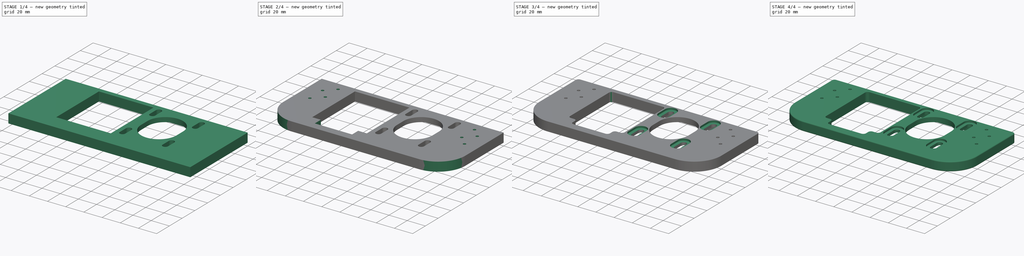
[diagram: build sequence overview — one tinted view per stage of 4, left to right]
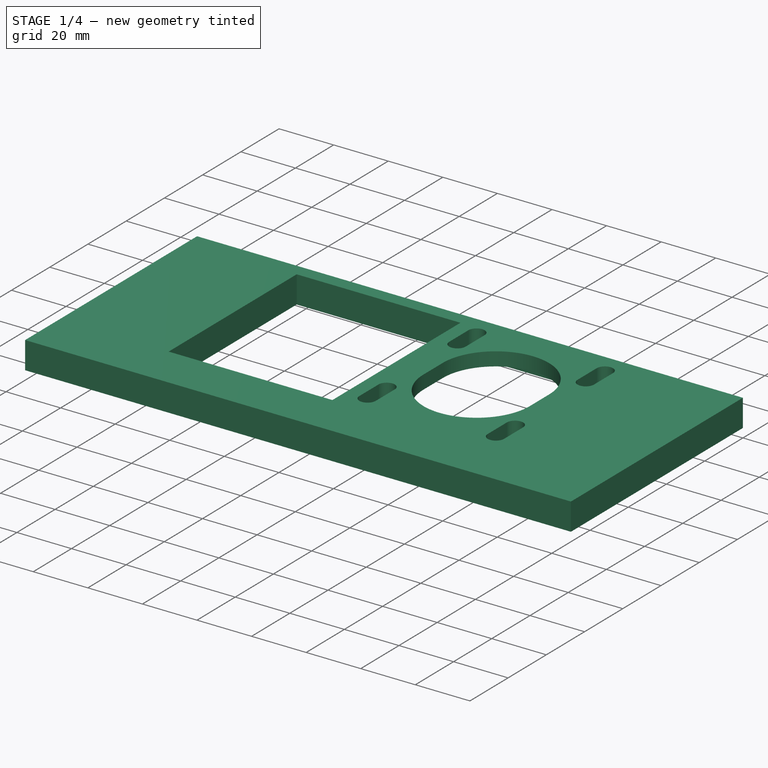
[diagram: stage 1 of 4 — iso view after this stage's code; geometry added in this stage tinted green]
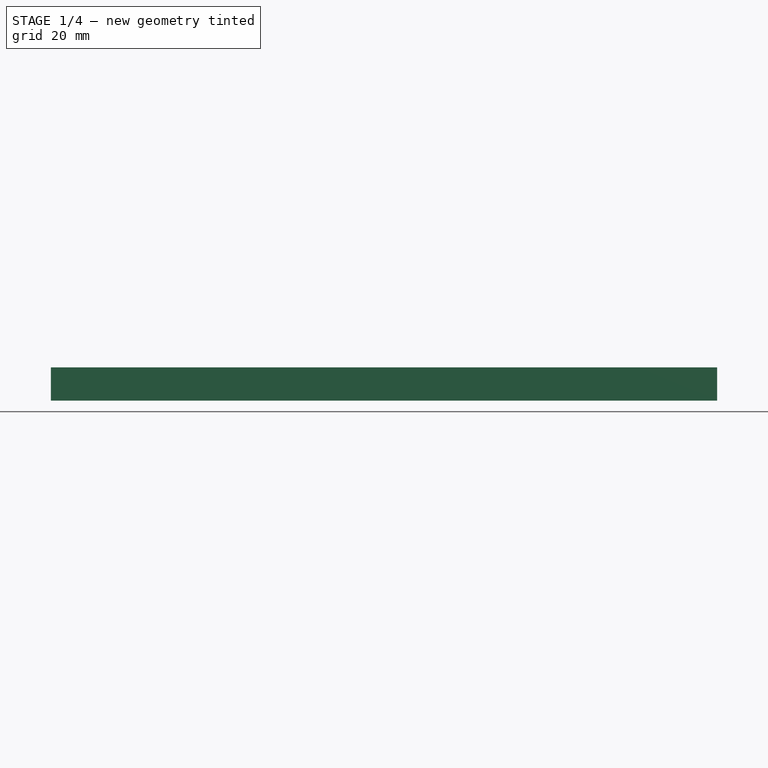
[diagram: stage 1 of 4 — front view after this stage's code; geometry added in this stage tinted green]
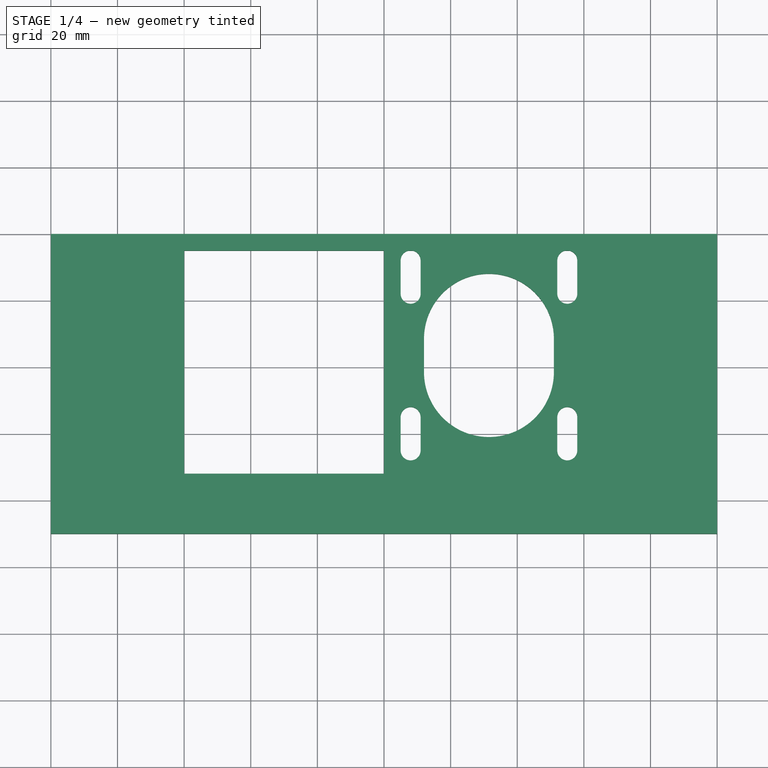
[diagram: stage 1 of 4 — top view after this stage's code; geometry added in this stage tinted green]
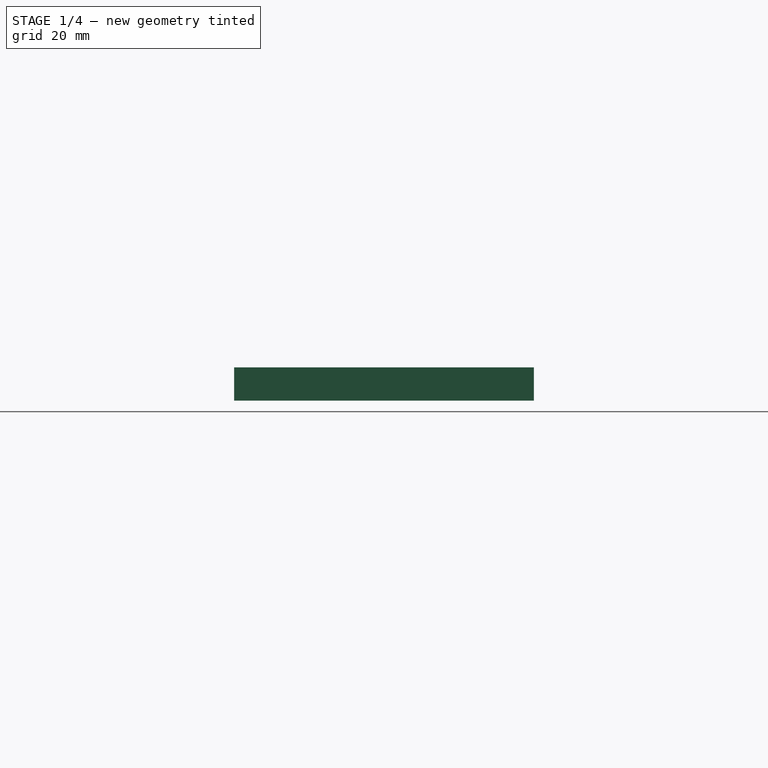
[diagram: stage 1 of 4 — right view after this stage's code; geometry added in this stage tinted green]
FCSTD DOCUMENT  (FreeCAD 0.19R24276 (Git))
Label: Stepper_holder_V2_from_part16_as_4
License: All rights reserved
LicenseURL: http://en.wikipedia.org/wiki/All_rights_reserved
objects: Sketcher::SketchObject×5, PartDesign::Fillet×5, PartDesign::Pocket×3, PartDesign::Pad×2, PartDesign::Body×1
note: 26 computed .brp shape members not serialized (recipe doc carries the construction recipe); baked Part::Feature solids carry a one-line shape summary decoded from their .brp

FEATURE [Sketcher::SketchObject] Sketch  label="Sketch_d39_up_part"
  FullyConstrained = false
  MapMode = 5
  Support = -> [XY_Plane]
  sketch-geometry (104):
    g0: LineSegment StartX=0 StartY=0 StartZ=0 EndX=200 EndY=0 EndZ=0
    g1: LineSegment StartX=200 StartY=0 StartZ=0 EndX=200 EndY=130 EndZ=0
    g2: LineSegment StartX=200 StartY=130 StartZ=0 EndX=0 EndY=130 EndZ=0
    g3: LineSegment StartX=0 StartY=130 StartZ=0 EndX=0 EndY=0 EndZ=0
    g4: Circle CenterX=100 CenterY=65 CenterZ=0 NormalX=0 NormalY=0 NormalZ=1 AngleXU=0 Radius=35
    g5: Circle CenterX=45 CenterY=115 CenterZ=0 NormalX=0 NormalY=0 NormalZ=1 AngleXU=0 Radius=1.5625
    g6: Circle CenterX=45 CenterY=15 CenterZ=0 NormalX=0 NormalY=0 NormalZ=1 AngleXU=0 Radius=1.5625
    g7: Circle CenterX=155 CenterY=115 CenterZ=0 NormalX=0 NormalY=0 NormalZ=1 AngleXU=0 Radius=1.5625
    g8: Circle CenterX=155 CenterY=15 CenterZ=0 NormalX=0 NormalY=0 NormalZ=1 AngleXU=0 Radius=1.5625
    g9: LineSegment StartX=45 StartY=15 StartZ=0 EndX=45 EndY=115 EndZ=0
    g10: LineSegment StartX=45 StartY=15 StartZ=0 EndX=155 EndY=15 EndZ=0
    g11: LineSegment StartX=155 StartY=115 StartZ=0 EndX=155 EndY=15 EndZ=0
    g12: LineSegment StartX=45 StartY=115 StartZ=0 EndX=155 EndY=115 EndZ=0
    g13: Circle CenterX=185 CenterY=30 CenterZ=0 NormalX=0 NormalY=0 NormalZ=1 AngleXU=0 Radius=1.5625
    g14: LineSegment StartX=185 StartY=105 StartZ=0 EndX=185 EndY=30 EndZ=0
    g15: Circle CenterX=99.9966 CenterY=64.9752 CenterZ=0 NormalX=0 NormalY=0 NormalZ=1 AngleXU=0 Radius=50
    g16: LineSegment StartX=100 StartY=65 StartZ=0 EndX=135.339 EndY=100.344 EndZ=0
    g17: LineSegment StartX=100 StartY=65 StartZ=0 EndX=64.6329 EndY=29.6281 EndZ=0
    g18: LineSegment StartX=100 StartY=65 StartZ=0 EndX=135.368 EndY=29.6364 EndZ=0
    g19: Circle CenterX=135.339 CenterY=100.344 CenterZ=0 NormalX=0 NormalY=0 NormalZ=1 AngleXU=0 Radius=1.5625
    g20: Circle CenterX=64.6329 CenterY=29.6281 CenterZ=0 NormalX=0 NormalY=0 NormalZ=1 AngleXU=0 Radius=1.5625
    g21: LineSegment StartX=100 StartY=65 StartZ=0 EndX=64.653 EndY=100.342 EndZ=0
    g22: Circle CenterX=64.6446 CenterY=100.355 CenterZ=0 NormalX=0 NormalY=0 NormalZ=1 AngleXU=0 Radius=1.5625
    g23: Circle CenterX=135.368 CenterY=29.6364 CenterZ=0 NormalX=0 NormalY=0 NormalZ=1 AngleXU=0 Radius=1.5625
    g24: LineSegment StartX=175 StartY=121.301 StartZ=0 EndX=175 EndY=20 EndZ=0
    g25: Circle CenterX=175 CenterY=20 CenterZ=0 NormalX=0 NormalY=0 NormalZ=1 AngleXU=0 Radius=1.5625
    g26: Circle CenterX=175 CenterY=40 CenterZ=0 NormalX=0 NormalY=0 NormalZ=1 AngleXU=0 Radius=1.5625
    g27: Circle CenterX=185 CenterY=50 CenterZ=0 NormalX=0 NormalY=0 NormalZ=1 AngleXU=0 Radius=1.5625
    g28: LineSegment StartX=100 StartY=65 StartZ=0 EndX=228.555 EndY=65 EndZ=0
    g29: Circle CenterX=175 CenterY=90 CenterZ=0 NormalX=0 NormalY=0 NormalZ=1 AngleXU=0 Radius=1.5625
    g30: Circle CenterX=175 CenterY=110 CenterZ=0 NormalX=0 NormalY=0 NormalZ=1 AngleXU=0 Radius=1.5625
    g31: Circle CenterX=185 CenterY=80 CenterZ=0 NormalX=0 NormalY=0 NormalZ=1 AngleXU=0 Radius=1.5625
    g32: Circle CenterX=185 CenterY=100 CenterZ=0 NormalX=0 NormalY=0 NormalZ=1 AngleXU=0 Radius=1.5625
    g33: LineSegment StartX=100 StartY=65 StartZ=0 EndX=100 EndY=146.994 EndZ=0
    g34: Circle CenterX=15 CenterY=30 CenterZ=0 NormalX=0 NormalY=0 NormalZ=1 AngleXU=0 Radius=1.5625
    g35: LineSegment StartX=15 StartY=105 StartZ=0 EndX=15 EndY=30 EndZ=0
    g36: LineSegment StartX=25 StartY=121.301 StartZ=0 EndX=25 EndY=20 EndZ=0
    g37: Circle CenterX=25 CenterY=20 CenterZ=0 NormalX=0 NormalY=0 NormalZ=1 AngleXU=0 Radius=1.5625
    g38: Circle CenterX=25 CenterY=40 CenterZ=0 NormalX=0 NormalY=0 NormalZ=1 AngleXU=0 Radius=1.5625
    g39: Circle CenterX=15 CenterY=50 CenterZ=0 NormalX=0 NormalY=0 NormalZ=1 AngleXU=0 Radius=1.5625
    g40: Circle CenterX=25 CenterY=90 CenterZ=0 NormalX=0 NormalY=0 NormalZ=1 AngleXU=0 Radius=1.5625
    g41: Circle CenterX=25 CenterY=110 CenterZ=0 NormalX=0 NormalY=0 NormalZ=1 AngleXU=0 Radius=1.5625
    g42: Circle CenterX=15 CenterY=80 CenterZ=0 NormalX=0 NormalY=0 NormalZ=1 AngleXU=0 Radius=1.5625
    g43: Circle CenterX=15 CenterY=100 CenterZ=0 NormalX=0 NormalY=0 NormalZ=1 AngleXU=0 Radius=1.5625
    g44: LineSegment StartX=0 StartY=0 StartZ=0 EndX=200 EndY=0 EndZ=0
    g45: LineSegment StartX=200 StartY=0 StartZ=0 EndX=200 EndY=-60 EndZ=0
    g46: LineSegment StartX=200 StartY=-60 StartZ=0 EndX=0 EndY=-60 EndZ=0
    g47: LineSegment StartX=0 StartY=-60 StartZ=0 EndX=0 EndY=0 EndZ=0
    g48: LineSegment StartX=175 StartY=20 StartZ=0 EndX=175 EndY=-52.7638 EndZ=0
    g49: Circle CenterX=175 CenterY=-10 CenterZ=0 NormalX=0 NormalY=0 NormalZ=1 AngleXU=0 Radius=1.5625
    g50: Circle CenterX=175 CenterY=-30 CenterZ=0 NormalX=0 NormalY=0 NormalZ=1 AngleXU=0 Radius=1.5625
    g51: LineSegment StartX=185 StartY=30 StartZ=0 EndX=185 EndY=-52.453 EndZ=0
    g52: Circle CenterX=185 CenterY=-20 CenterZ=0 NormalX=0 NormalY=0 NormalZ=1 AngleXU=0 Radius=1.5625
    g53: Circle CenterX=185 CenterY=-40 CenterZ=0 NormalX=0 NormalY=0 NormalZ=1 AngleXU=0 Radius=1.5625
    g54: Circle CenterX=25 CenterY=-10 CenterZ=0 NormalX=0 NormalY=0 NormalZ=1 AngleXU=0 Radius=1.5625
    g55: Circle CenterX=25 CenterY=-30 CenterZ=0 NormalX=0 NormalY=0 NormalZ=1 AngleXU=0 Radius=1.5625
    g56: Circle CenterX=15 CenterY=-20 CenterZ=0 NormalX=0 NormalY=0 NormalZ=1 AngleXU=0 Radius=1.5625
    g57: Circle CenterX=15 CenterY=-40 CenterZ=0 NormalX=0 NormalY=0 NormalZ=1 AngleXU=0 Radius=1.5625
    g58: LineSegment StartX=107.989 StartY=-7.9887 StartZ=0 EndX=107.989 EndY=-55.0113 EndZ=0
    g59: LineSegment StartX=107.989 StartY=-55.0113 StartZ=0 EndX=155.011 EndY=-55.0113 EndZ=0
    g60: LineSegment StartX=155.011 StartY=-55.0113 StartZ=0 EndX=155.011 EndY=-7.9887 EndZ=0
    g61: LineSegment StartX=155.011 StartY=-7.9887 StartZ=0 EndX=107.989 EndY=-7.9887 EndZ=0
    g62: Circle CenterX=131.5 CenterY=-31.5 CenterZ=0 NormalX=0 NormalY=0 NormalZ=1 AngleXU=0 Radius=33.25
    g63: Circle CenterX=155.011 CenterY=-55.0113 CenterZ=0 NormalX=0 NormalY=0 NormalZ=1 AngleXU=0 Radius=3
    g64: LineSegment StartX=103 StartY=-3 StartZ=0 EndX=103 EndY=-60 EndZ=0
    g65: LineSegment StartX=103 StartY=-60 StartZ=0 EndX=160 EndY=-60 EndZ=0
    g66: LineSegment StartX=160 StartY=-60 StartZ=0 EndX=160 EndY=-3 EndZ=0
    g67: LineSegment StartX=160 StartY=-3 StartZ=0 EndX=103 EndY=-3 EndZ=0
    g68: Circle CenterX=131.5 CenterY=-31.5 CenterZ=0 NormalX=0 NormalY=0 NormalZ=1 AngleXU=0 Radius=40.3051
    g69: LineSegment StartX=160 StartY=0 StartZ=0 EndX=160 EndY=130 EndZ=0
    g70: LineSegment StartX=0 StartY=0 StartZ=0 EndX=200 EndY=0 EndZ=0
    g71: LineSegment StartX=40 StartY=-5 StartZ=0 EndX=100 EndY=-5 EndZ=0
    g72: LineSegment StartX=100 StartY=-5 StartZ=0 EndX=100 EndY=-72 EndZ=0
    g73: LineSegment StartX=100 StartY=-72 StartZ=0 EndX=40 EndY=-72 EndZ=0
    g74: LineSegment StartX=40 StartY=-72 StartZ=0 EndX=40 EndY=-5 EndZ=0
    g75: LineSegment StartX=40 StartY=-72 StartZ=0 EndX=100 EndY=-5 EndZ=0
    g76: LineSegment StartX=40 StartY=-5 StartZ=0 EndX=70 EndY=-38.5 EndZ=0
    g77: Circle CenterX=70 CenterY=-38.5 CenterZ=0 NormalX=0 NormalY=0 NormalZ=1 AngleXU=0 Radius=4.07973
    g78: LineSegment StartX=70 StartY=-38.5 StartZ=0 EndX=100 EndY=-72 EndZ=0
    g79: LineSegment StartX=0 StartY=0 StartZ=0 EndX=200 EndY=0 EndZ=0
    g80: LineSegment StartX=200 StartY=0 StartZ=0 EndX=200 EndY=-90 EndZ=0
    g81: LineSegment StartX=200 StartY=-90 StartZ=0 EndX=0 EndY=-90 EndZ=0
    g82: LineSegment StartX=0 StartY=-90 StartZ=0 EndX=0 EndY=0 EndZ=0
    g83: LineSegment StartX=40 StartY=48.3521 StartZ=0 EndX=40 EndY=-60 EndZ=0
    g84: ArcOfCircle CenterX=155.011 CenterY=-7.9887 CenterZ=0 NormalX=0 NormalY=0 NormalZ=1 AngleXU=0 Radius=3 StartAngle=1e-16 EndAngle=3.14159
    g85: ArcOfCircle CenterX=155.011 CenterY=-17.9887 CenterZ=0 NormalX=0 NormalY=0 NormalZ=1 AngleXU=0 Radius=3 StartAngle=3.14159 EndAngle=6.28319
    g86: LineSegment StartX=152.011 StartY=-7.9887 StartZ=0 EndX=152.011 EndY=-17.9887 EndZ=0
    g87: LineSegment StartX=158.011 StartY=-7.9887 StartZ=0 EndX=158.011 EndY=-17.9887 EndZ=0
    g88: ArcOfCircle CenterX=131.5 CenterY=-31.5 CenterZ=0 NormalX=0 NormalY=0 NormalZ=1 AngleXU=0 Radius=19.5 StartAngle=2e-16 EndAngle=3.14159
    g89: ArcOfCircle CenterX=131.5 CenterY=-41.5 CenterZ=0 NormalX=0 NormalY=0 NormalZ=1 AngleXU=0 Radius=19.5 StartAngle=3.14159 EndAngle=6.28319
    g90: LineSegment StartX=112 StartY=-31.5 StartZ=0 EndX=112 EndY=-41.5 EndZ=0
    g91: LineSegment StartX=151 StartY=-31.5 StartZ=0 EndX=151 EndY=-41.5 EndZ=0
    g92: ArcOfCircle CenterX=155.011 CenterY=-55.0113 CenterZ=0 NormalX=0 NormalY=0 NormalZ=1 AngleXU=0 Radius=3 StartAngle=2e-16 EndAngle=3.14159
    g93: ArcOfCircle CenterX=155.011 CenterY=-65.0113 CenterZ=0 NormalX=0 NormalY=0 NormalZ=1 AngleXU=0 Radius=3 StartAngle=3.14159 EndAngle=6.28319
    g94: LineSegment StartX=152.011 StartY=-55.0113 StartZ=0 EndX=152.011 EndY=-65.0113 EndZ=0
    g95: LineSegment StartX=158.011 StartY=-55.0113 StartZ=0 EndX=158.011 EndY=-65.0113 EndZ=0
    g96: ArcOfCircle CenterX=107.989 CenterY=-55.0113 CenterZ=0 NormalX=0 NormalY=0 NormalZ=1 AngleXU=0 Radius=3 StartAngle=1.1e-15 EndAngle=3.14159
    g97: ArcOfCircle CenterX=107.989 CenterY=-65.0113 CenterZ=0 NormalX=0 NormalY=0 NormalZ=1 AngleXU=0 Radius=3 StartAngle=3.14159 EndAngle=6.28319
    g98: LineSegment StartX=104.989 StartY=-55.0113 StartZ=0 EndX=104.989 EndY=-65.0113 EndZ=0
    g99: LineSegment StartX=110.989 StartY=-55.0113 StartZ=0 EndX=110.989 EndY=-65.0113 EndZ=0
    g100: ArcOfCircle CenterX=107.989 CenterY=-7.9887 CenterZ=0 NormalX=0 NormalY=0 NormalZ=1 AngleXU=0 Radius=3 StartAngle=0 EndAngle=3.14159
    g101: ArcOfCircle CenterX=107.989 CenterY=-17.9887 CenterZ=0 NormalX=0 NormalY=0 NormalZ=1 AngleXU=0 Radius=3 StartAngle=3.14159 EndAngle=6.28319
    g102: LineSegment StartX=104.989 StartY=-7.9887 StartZ=0 EndX=104.989 EndY=-17.9887 EndZ=0
    g103: LineSegment StartX=110.989 StartY=-7.9887 StartZ=0 EndX=110.989 EndY=-17.9887 EndZ=0
  constraints (235):
    c: Coincident(g0,g1)
    c: Coincident(g1,g2)
    c: Coincident(g2,g3)
    c: Coincident(g3,g0)
    c: Horizontal(g0)
    c: Horizontal(g2)
    c: Vertical(g1)
    c: Vertical(g3)
    c: Coincident(g0,g-1)
    c: DistanceY(g1,g1) = 130
    c: DistanceX(g0,g0) = 200
    c: Symmetric(g2,g0,g4)
    c: Diameter(g4) = 70
    c: DistanceX(g0,g6) = 45
    c: Coincident(g9,g6)
    c: Coincident(g9,g5)
    c: Vertical(g9)
    c: Coincident(g10,g6)
    c: Coincident(g10,g8)
    c: Horizontal(g10)
    c: Coincident(g11,g7)
    c: Coincident(g11,g8)
    c: Vertical(g11)
    c: Coincident(g12,g5)
    c: Coincident(g12,g7)
    c: Horizontal(g12)
    c: Symmetric(g7,g6,g4)
    c: DistanceY(g0,g6) = 15
    c: Coincident(g14,g13)
    c: Vertical(g14)
    c: Equal(g5,g6)
    c: Equal(g5,g8)
    c: Equal(g5,g7)
    c: DistanceX(g13,g0) = 15
    c: Diameter(g15) = 100
    c: Coincident(g16,g4)
    c: Coincident(g17,g4)
    c: Coincident(g18,g4)
    c: Parallel(g17,g16)
    c: Angle(g17,g18) = 1.5708
    c: PointOnObject(g18,g15)
    c: PointOnObject(g17,g15)
    c: PointOnObject(g16,g15)
    c: Coincident(g19,g16)
    c: Coincident(g20,g17)
    c: Coincident(g21,g4)
    c: Parallel(g18,g21)
    c: PointOnObject(g21,g15)
    c: Coincident(g23,g18)
    c: Diameter(g23) = 3.125
    c: Equal(g23,g19)
    c: Equal(g23,g22)
    c: Equal(g23,g20)
    c: Vertical(g24)
    c: DistanceX(g24,g0) = 25
    c: DistanceY(g0,g13) = 30
    c: Coincident(g25,g24)
    c: Equal(g13,g25)
    c: DistanceY(g0,g24) = 20
    c: PointOnObject(g26,g24)
    c: Equal(g25,g26)
    c: DistanceY(g24,g26) = 20
    c: PointOnObject(g27,g14)
    c: Equal(g26,g27)
    c: DistanceY(g13,g27) = 20
    c: Coincident(g28,g4)
    c: Horizontal(g28)
    c: Equal(g32,g30)
    c: Equal(g30,g29)
    c: Equal(g29,g31)
    c: Coincident(g33,g4)
    c: Vertical(g33)
    c: Coincident(g35,g34)
    c: Vertical(g35)
    c: Vertical(g36)
    c: Coincident(g37,g36)
    c: Equal(g34,g37)
    c: PointOnObject(g38,g36)
    c: Equal(g37,g38)
    c: PointOnObject(g39,g35)
    c: Equal(g38,g39)
    c: Equal(g43,g41)
    c: Equal(g41,g40)
    c: Equal(g40,g42)
    c: Diameter(g25) = 3.125
    c: Equal(g31,g27)
    c: Equal(g41,g30)
    c: Equal(g40,g38)
    c: Equal(g41,g5)
    c: Coincident(g44,g45)
    c: Coincident(g45,g46)
    c: Coincident(g46,g47)
    c: Coincident(g47,g44)
    c: Horizontal(g44)
    c: Horizontal(g46)
    c: Vertical(g45)
    c: Vertical(g47)
    c: Coincident(g44,g0)
    c: Coincident(g48,g25)
    c: Vertical(g48)
    c: PointOnObject(g49,g48)
    c: DistanceY(g49,g25) = 30
    c: PointOnObject(g50,g48)
    c: DistanceY(g50,g49) = 20
    c: Coincident(g51,g13)
    c: Vertical(g51)
    c: PointOnObject(g52,g51)
    c: PointOnObject(g53,g51)
    c: DistanceY(g53,g27) = 90
    c: DistanceY(g53,g52) = 20
    c: Equal(g49,g50)
    c: Equal(g50,g52)
    c: Equal(g52,g53)
    c: Equal(g53,g25)
    c: DistanceY(g45,g53) = 20
    c: Equal(g54,g55)
    c: Equal(g55,g56)
    c: Equal(g56,g57)
    c: Coincident(g58,g59)
    c: Coincident(g59,g60)
    c: Coincident(g60,g61)
    c: Coincident(g61,g58)
    c: Equal(g58,g59)
    c: Equal(g58,g60)
    c: Equal(g58,g61)
    c: PointOnObject(g58,g62)
    c: PointOnObject(g59,g62)
    c: PointOnObject(g60,g62)
    c: PointOnObject(g61,g62)
    c: Diameter(g62) = 66.5
    c: Parallel(g61,g46)
    c: Coincident(g63,g59)
    c: Coincident(g64,g65)
    c: Coincident(g65,g66)
    c: Coincident(g66,g67)
    c: Coincident(g67,g64)
    c: Equal(g64,g65)
    c: Equal(g64,g66)
    c: Equal(g64,g67)
    c: PointOnObject(g64,g68)
    c: PointOnObject(g65,g68)
    c: PointOnObject(g66,g68)
    c: PointOnObject(g67,g68)
    c: DistanceX(g65,g65) = 57
    c: Parallel(g67,g0)
    c: PointOnObject(g69,g0)
    c: PointOnObject(g69,g2)
    c: Vertical(g69)
    c: DistanceX(g69,g1) = 40
    c: Horizontal(g70)
    c: PointOnObject(g70,g45)
    c: PointOnObject(g70,g47)
    c: Coincident(g71,g72)
    c: Coincident(g72,g73)
    c: Coincident(g73,g74)
    c: Coincident(g74,g71)
    c: Horizontal(g71)
    c: Horizontal(g73)
    c: Vertical(g72)
    c: Vertical(g74)
    c: Coincident(g75,g73)
    c: Coincident(g75,g71)
    c: Coincident(g76,g71)
    c: PointOnObject(g76,g75)
    c: Coincident(g77,g76)
    c: Coincident(g78,g76)
    c: Coincident(g78,g72)
    c: Parallel(g78,g76)
    c: DistanceX(g73,g73) = 60
    c: DistanceY(g74,g74) = 67
    c: Coincident(g79,g80)
    c: Coincident(g80,g81)
    c: Coincident(g81,g82)
    c: Coincident(g82,g79)
    c: Horizontal(g79)
    c: Horizontal(g81)
    c: Vertical(g80)
    c: Vertical(g82)
    c: Coincident(g79,g70)
    c: DistanceX(g81,g81) = 200
    c: DistanceY(g80,g45) = 30
    c: PointOnObject(g83,g46)
    c: Vertical(g83)
    c: DistanceX(g-1,g83) = 40
    c: DistanceX(g65,g80) = 40
    c: Tangent(g84,g87) = 1.5708
    c: Tangent(g84,g86) = -1.5708
    c: Tangent(g86,g85) = -1.5708
    c: Tangent(g87,g85) = 1.5708
    c: Vertical(g86)
    c: Equal(g84,g85)
    c: Coincident(g84,g60)
    c: Diameter(g84) = 6
    c: DistanceY(g85,g84) = 10
    c: Tangent(g88,g91) = 1.5708
    c: Tangent(g88,g90) = -1.5708
    c: Tangent(g90,g89) = -1.5708
    c: Tangent(g91,g89) = 1.5708
    c: Vertical(g90)
    c: Equal(g88,g89)
    c: Coincident(g88,g62)
    c: Diameter(g89) = 39
    c: DistanceY(g89,g88) = 10
    c: Tangent(g92,g95) = 1.5708
    c: Tangent(g92,g94) = -1.5708
    c: Tangent(g94,g93) = -1.5708
    c: Tangent(g95,g93) = 1.5708
    c: Vertical(g94)
    c: Equal(g92,g93)
    c: Coincident(g92,g59)
    c: Diameter(g92) = 6
    c: DistanceY(g93,g92) = 10
    c: Coincident(g88,g68)
    c: Tangent(g96,g99) = 1.5708
    c: Tangent(g96,g98) = -1.5708
    c: Tangent(g98,g97) = -1.5708
    c: Tangent(g99,g97) = 1.5708
    c: Vertical(g98)
    c: Equal(g96,g97)
    c: Coincident(g96,g58)
    c: Diameter(g96) = 6
    c: DistanceY(g97,g96) = 10
    c: Tangent(g100,g103) = 1.5708
    c: Tangent(g100,g102) = -1.5708
    c: Tangent(g102,g101) = -1.5708
    c: Tangent(g103,g101) = 1.5708
    c: Vertical(g102)
    c: Equal(g100,g101)
    c: Coincident(g100,g58)
    c: DistanceY(g101,g100) = 10
    c: Diameter(g101) = 6
    c: DistanceY(g88,g79) = 31.5
    c: DistanceX(g81,g73) = 40
    c: DistanceY(g71,g79) = 5
    c: DistanceY(g79,g-1) = 0
FEATURE [PartDesign::Pad] Pad  label="Pad_h5"
  Direction = (1,1,1)
  Length = 5
  Length2 = 100
  Profile = -> Sketch
  Type = 0
FEATURE [Sketcher::SketchObject] Sketch001  label="Sketch001_down_part"
  FullyConstrained = false
  MapMode = 5
  Placement = pos=(0,0,0) rot=(1,0,0;3.14159rad)
  sketch-geometry (12):
    g0: LineSegment StartX=0 StartY=0 StartZ=0 EndX=200 EndY=0 EndZ=0
    g1: LineSegment StartX=200 StartY=0 StartZ=0 EndX=200 EndY=90 EndZ=0
    g2: LineSegment StartX=200 StartY=90 StartZ=0 EndX=0 EndY=90 EndZ=0
    g3: LineSegment StartX=0 StartY=90 StartZ=0 EndX=0 EndY=0 EndZ=0
    g4: LineSegment StartX=40 StartY=72 StartZ=0 EndX=164 EndY=72 EndZ=0
    g5: LineSegment StartX=164 StartY=72 StartZ=0 EndX=164 EndY=5 EndZ=0
    g6: LineSegment StartX=164 StartY=5 StartZ=0 EndX=158 EndY=5 EndZ=0
    g7: LineSegment StartX=40 StartY=5 StartZ=0 EndX=40 EndY=72 EndZ=0
    g8: ArcOfCircle CenterX=108 CenterY=4.98482 CenterZ=0 NormalX=0 NormalY=0 NormalZ=1 AngleXU=0 Radius=3 StartAngle=3.13653 EndAngle=6.28837
    g9: ArcOfCircle CenterX=155 CenterY=5 CenterZ=0 NormalX=0 NormalY=0 NormalZ=1 AngleXU=0 Radius=3 StartAngle=3.13161 EndAngle=6.28319
    g10: LineSegment StartX=111 StartY=5 StartZ=0 EndX=152 EndY=5 EndZ=0
    g11: LineSegment StartX=40 StartY=5 StartZ=0 EndX=164 EndY=5 EndZ=0
  constraints (35):
    c: Coincident(g0,g1)
    c: Coincident(g1,g2)
    c: Coincident(g2,g3)
    c: Coincident(g3,g0)
    c: Horizontal(g0)
    c: Horizontal(g2)
    c: Vertical(g1)
    c: Vertical(g3)
    c: Coincident(g0,g-1)
    c: DistanceX(g2,g2) = 200
    c: DistanceY(g3,g3) = 90
    c: Coincident(g4,g5)
    c: Coincident(g5,g6)
    c: Coincident(g7,g4)
    c: Horizontal(g4)
    c: Horizontal(g6)
    c: Vertical(g5)
    c: Vertical(g7)
    c: DistanceX(g0,g7) = 40
    c: DistanceY(g0,g7) = 5
    c: DistanceY(g7,g7) = 67
    c: DistanceX(g0,g8) = 108
    c: DistanceX(g0,g9) = 155
    c: Horizontal(g10)
    c: DistanceY(g0,g9) = 5
    c: Diameter(g9) = 6
    c: Equal(g9,g8)
    c: PointOnObject(g8,g6)
    c: PointOnObject(g10,g6)
    c: Coincident(g6,g9)
    c: PointOnObject(g10,g9)
    c: Coincident(g11,g7)
    c: DistanceX(g0,g5) = 164
    c: Coincident(g11,g5)
    c: Horizontal(g11)
FEATURE [PartDesign::Pad] Pad001  label="Pad001_h5"
  BaseFeature = -> Pad
  Direction = (1,1,1)
  Length = 5
  Length2 = 100
  Profile = -> Sketch001
  Type = 0
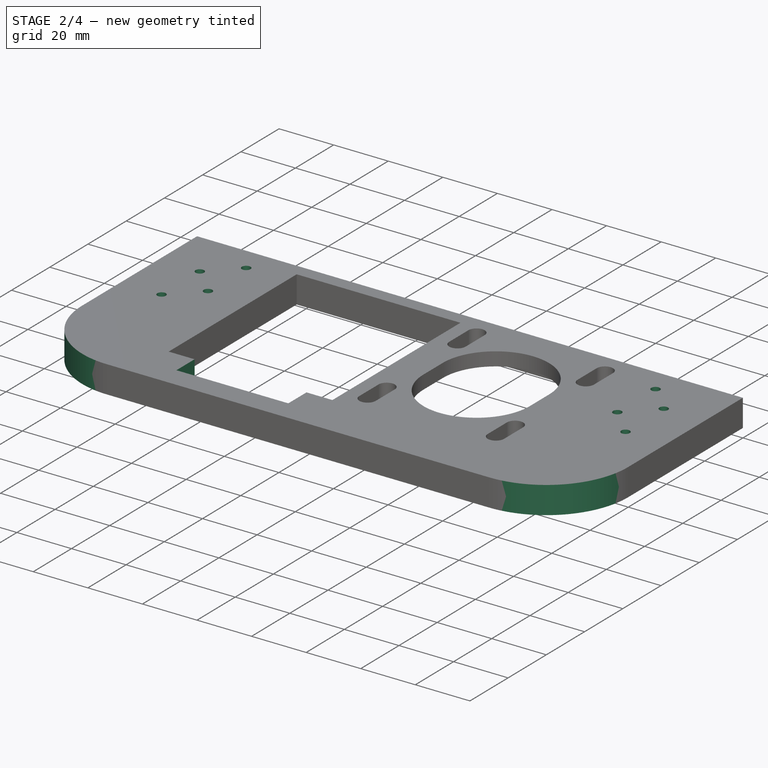
[diagram: stage 2 of 4 — iso view after this stage's code; geometry added in this stage tinted green]
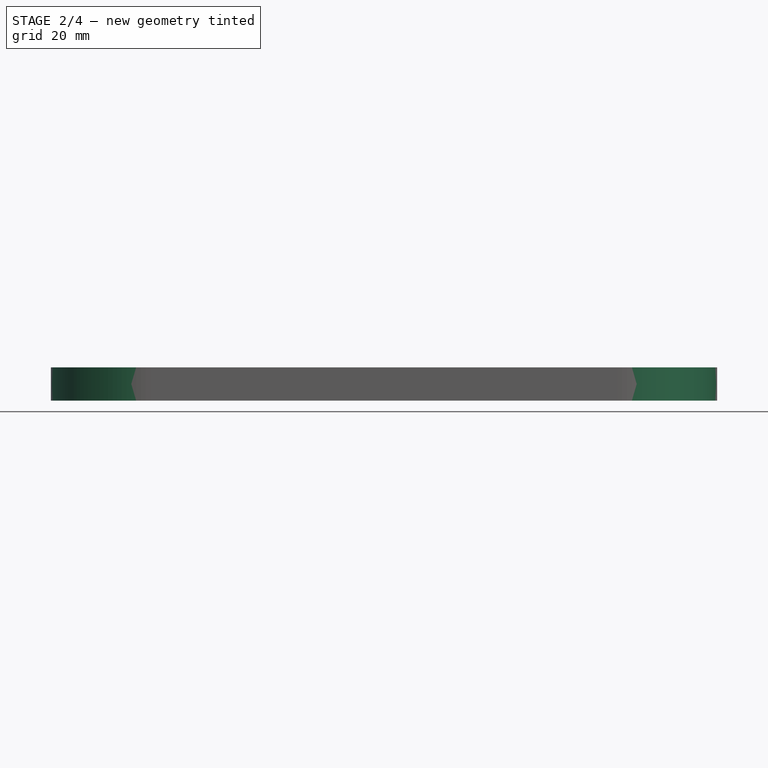
[diagram: stage 2 of 4 — front view after this stage's code; geometry added in this stage tinted green]
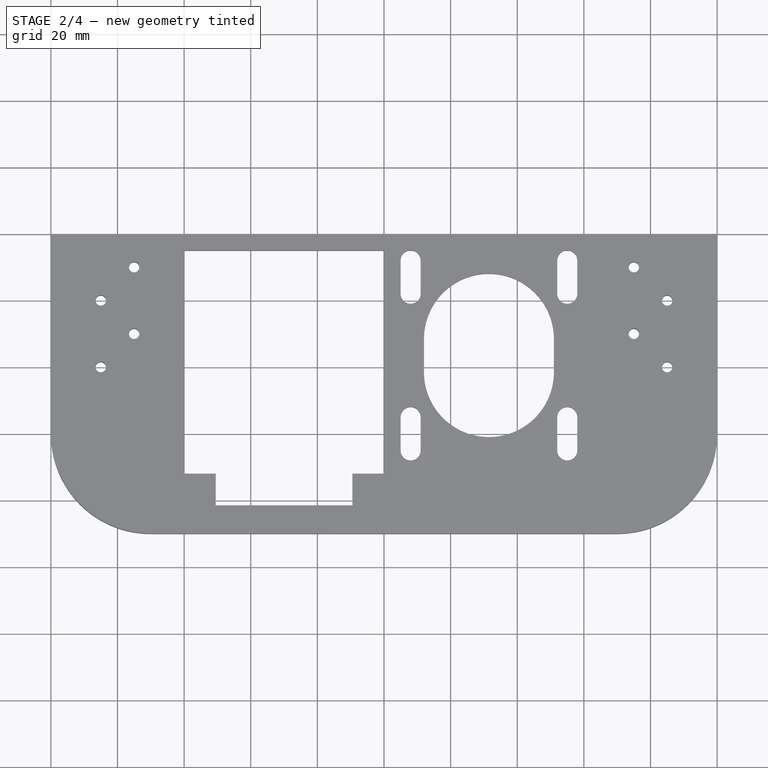
[diagram: stage 2 of 4 — top view after this stage's code; geometry added in this stage tinted green]
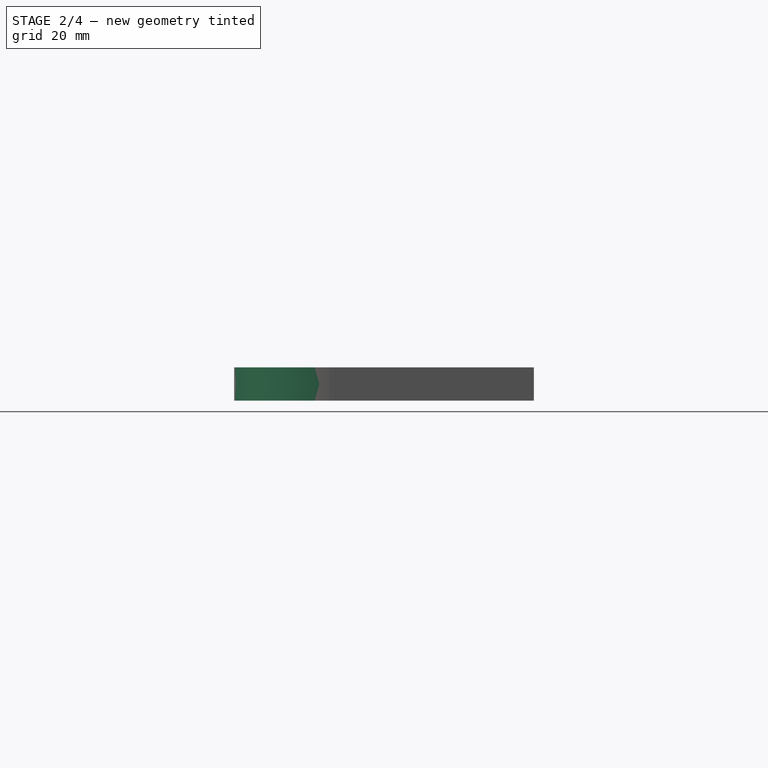
[diagram: stage 2 of 4 — right view after this stage's code; geometry added in this stage tinted green]
FEATURE [Sketcher::SketchObject] Sketch002  label="Sketch002_add_pocket"
  FullyConstrained = false
  MapMode = 5
  Placement = pos=(0,0,5) rot=(0,0,1;0rad)
  sketch-geometry (8):
    g0: LineSegment StartX=49.5 StartY=-72 StartZ=0 EndX=90.5 EndY=-72 EndZ=0
    g1: LineSegment StartX=90.5 StartY=-72 StartZ=0 EndX=90.5 EndY=-81.5 EndZ=0
    g2: LineSegment StartX=90.5 StartY=-81.5 StartZ=0 EndX=49.5 EndY=-81.5 EndZ=0
    g3: LineSegment StartX=49.5 StartY=-81.5 StartZ=0 EndX=49.5 EndY=-72 EndZ=0
    g4: LineSegment StartX=40 StartY=-58.7011 StartZ=0 EndX=100 EndY=-58.7011 EndZ=0
    g5: LineSegment StartX=100 StartY=-58.7011 StartZ=0 EndX=100 EndY=-65.8241 EndZ=0
    g6: LineSegment StartX=100 StartY=-65.8241 StartZ=0 EndX=40 EndY=-65.8241 EndZ=0
    g7: LineSegment StartX=40 StartY=-65.8241 StartZ=0 EndX=40 EndY=-58.7011 EndZ=0
  constraints (22):
    c: Coincident(g0,g1)
    c: Coincident(g1,g2)
    c: Coincident(g2,g3)
    c: Coincident(g3,g0)
    c: Horizontal(g0)
    c: Horizontal(g2)
    c: Vertical(g1)
    c: Vertical(g3)
    c: Coincident(g4,g5)
    c: Coincident(g5,g6)
    c: Coincident(g6,g7)
    c: Coincident(g7,g4)
    c: Horizontal(g4)
    c: Horizontal(g6)
    c: Vertical(g5)
    c: Vertical(g7)
    c: DistanceX(g-1,g4) = 40
    c: DistanceX(g4,g4) = 60
    c: DistanceX(g2,g2) = 41
    c: DistanceY(g0,g-1) = 72
    c: DistanceX(g6,g0) = 9.5
    c: DistanceY(g1,g0) = 9.5
FEATURE [PartDesign::Pocket] Pocket
  BaseFeature = -> Pad001
  Length = 5
  Length2 = 100
  Profile = -> Sketch002
  Type = 1
FEATURE [Sketcher::SketchObject] Sketch003  label="Sketch003_8otv_d3,125"
  FullyConstrained = false
  MapMode = 5
  Placement = pos=(0,0,5) rot=(0,0,1;0rad)
  sketch-geometry (13):
    g0: Circle CenterX=25 CenterY=-10 CenterZ=0 NormalX=0 NormalY=0 NormalZ=1 AngleXU=0 Radius=1.5625
    g1: Circle CenterX=15 CenterY=-20 CenterZ=0 NormalX=0 NormalY=0 NormalZ=1 AngleXU=0 Radius=1.5625
    g2: Circle CenterX=15 CenterY=-40 CenterZ=0 NormalX=0 NormalY=0 NormalZ=1 AngleXU=0 Radius=1.5625
    g3: Circle CenterX=25 CenterY=-30 CenterZ=0 NormalX=0 NormalY=0 NormalZ=1 AngleXU=0 Radius=1.5625
    g4: LineSegment StartX=25 StartY=-10 StartZ=0 EndX=25 EndY=-30 EndZ=0
    g5: LineSegment StartX=15 StartY=-20 StartZ=0 EndX=15 EndY=-40 EndZ=0
    g6: LineSegment StartX=100 StartY=8.37126 StartZ=0 EndX=100 EndY=-80.203 EndZ=0
    g7: Circle CenterX=175 CenterY=-10 CenterZ=0 NormalX=0 NormalY=0 NormalZ=1 AngleXU=0 Radius=1.5625
    g8: Circle CenterX=185 CenterY=-20 CenterZ=0 NormalX=0 NormalY=0 NormalZ=1 AngleXU=0 Radius=1.5625
    g9: Circle CenterX=185 CenterY=-40 CenterZ=0 NormalX=0 NormalY=0 NormalZ=1 AngleXU=0 Radius=1.5625
    g10: Circle CenterX=175 CenterY=-30 CenterZ=0 NormalX=0 NormalY=0 NormalZ=1 AngleXU=0 Radius=1.5625
    g11: LineSegment StartX=175 StartY=-10 StartZ=0 EndX=175 EndY=-30 EndZ=0
    g12: LineSegment StartX=185 StartY=-20 StartZ=0 EndX=185 EndY=-40 EndZ=0
  constraints (28):
    c: Diameter(g1) = 3.125
    c: Equal(g1,g3)
    c: Equal(g1,g2)
    c: Equal(g1,g0)
    c: DistanceX(g-1,g0) = 25
    c: Coincident(g4,g0)
    c: Vertical(g4)
    c: Coincident(g4,g3)
    c: Coincident(g5,g1)
    c: Coincident(g5,g2)
    c: Vertical(g5)
    c: DistanceY(g0,g-1) = 10
    c: DistanceY(g1,g-1) = 20
    c: DistanceY(g3,g-1) = 30
    c: DistanceY(g2,g-1) = 40
    c: DistanceX(g-1,g1) = 15
    c: Vertical(g6)
    c: DistanceX(g-1,g6) = 100
    c: Diameter(g8) = 3.125
    c: Equal(g8,g10)
    c: Equal(g8,g9)
    c: Equal(g8,g7)
    c: Coincident(g11,g7)
    c: Vertical(g11)
    c: Coincident(g11,g10)
    c: Coincident(g12,g8)
    c: Coincident(g12,g9)
    c: Vertical(g12)
FEATURE [PartDesign::Pocket] Pocket001
  BaseFeature = -> Pocket
  Length = 5
  Length2 = 100
  Profile = -> Sketch003
  Type = 1
FEATURE [PartDesign::Fillet] Fillet
  Base = -> Pocket001 [Edge5,Edge52,Edge8,Edge54]
  BaseFeature = -> Pocket001
  Radius = 30
  SupportTransform = false
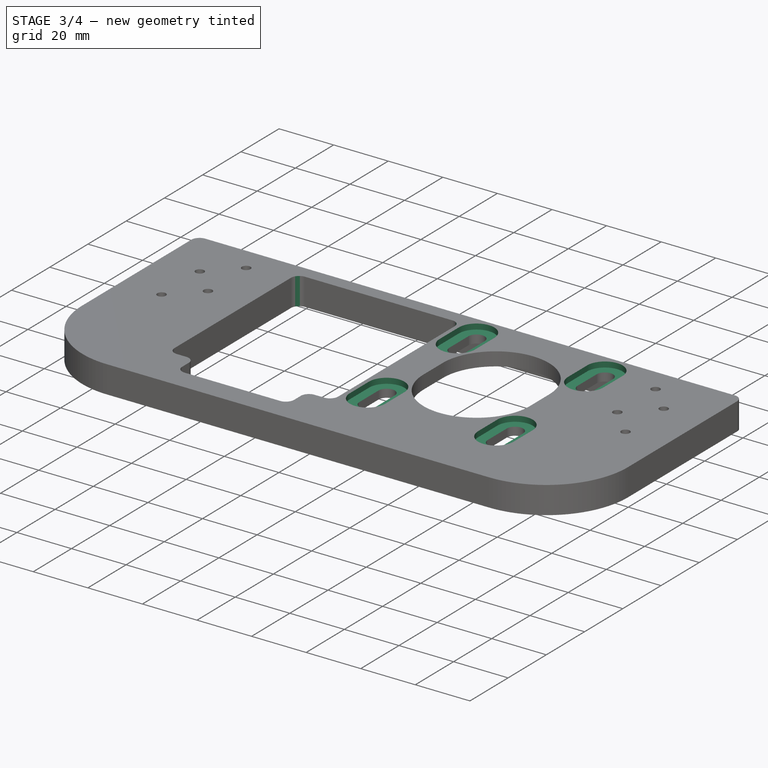
[diagram: stage 3 of 4 — iso view after this stage's code; geometry added in this stage tinted green]
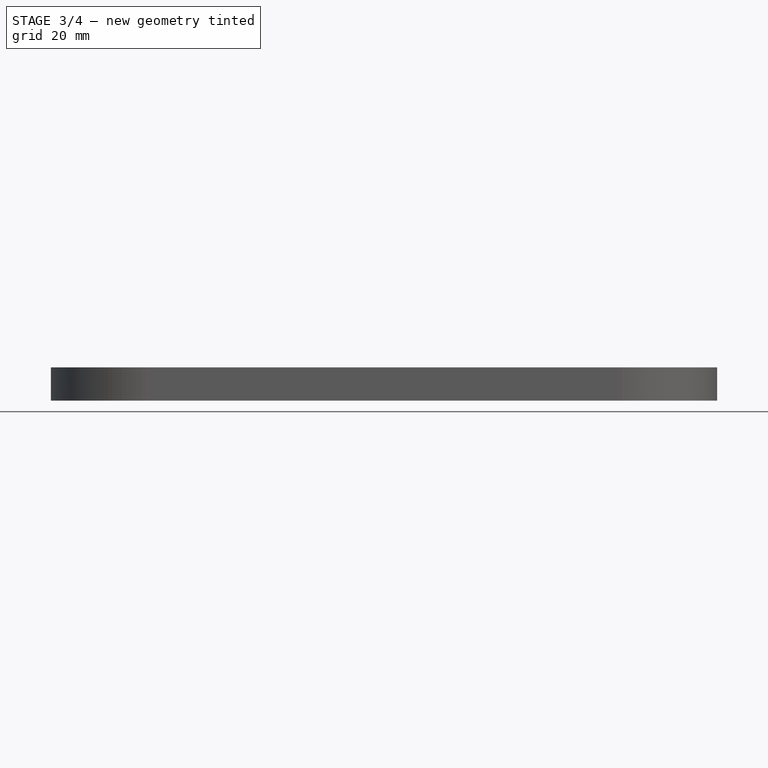
[diagram: stage 3 of 4 — front view after this stage's code; geometry added in this stage tinted green]
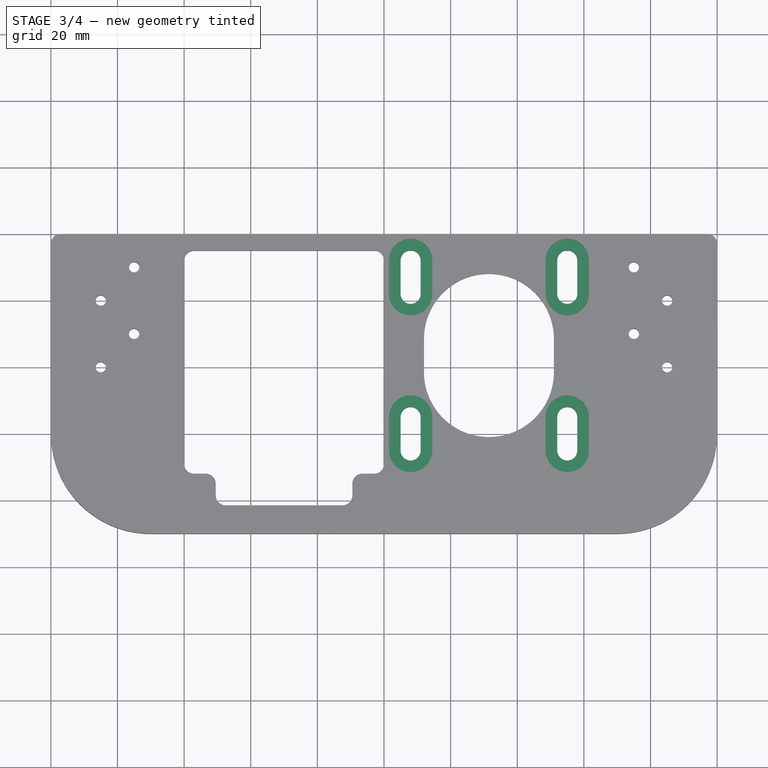
[diagram: stage 3 of 4 — top view after this stage's code; geometry added in this stage tinted green]
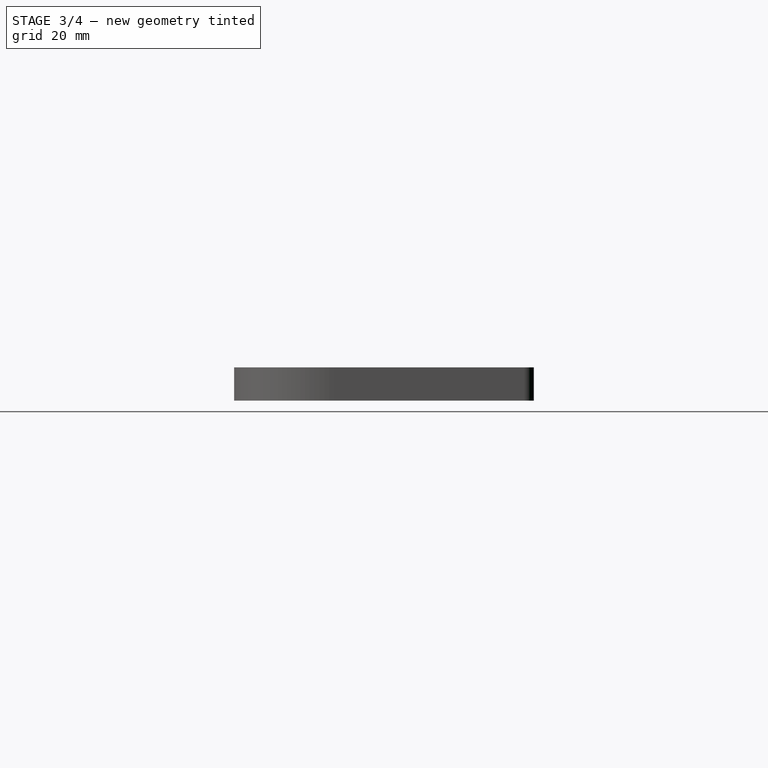
[diagram: stage 3 of 4 — right view after this stage's code; geometry added in this stage tinted green]
FEATURE [PartDesign::Fillet] Fillet001
  Base = -> Fillet [Edge102,Edge98,Edge150,Edge105,Edge101,Edge104,Edge97,Edge151,Edge11,Edge55,Edge3,Edge6,Edge108,Edge110,Edge111]
  BaseFeature = -> Fillet
  Radius = 3
  SupportTransform = false
FEATURE [PartDesign::Fillet] Fillet002
  Base = -> Fillet001 [Edge172]
  BaseFeature = -> Fillet001
  Radius = 3
  SupportTransform = false
FEATURE [Sketcher::SketchObject] Sketch004  label="Sketch004_4paz_up_part"
  FullyConstrained = true
  MapMode = 5
  Placement = pos=(0,0,5) rot=(0,0,1;0rad)
  Support = -> [Fillet002]
  sketch-geometry (22):
    g0: Circle CenterX=131.5 CenterY=-31.5 CenterZ=0 NormalX=0 NormalY=0 NormalZ=1 AngleXU=0 Radius=19.5
    g1: LineSegment StartX=155.011 StartY=-7.9887 StartZ=0 EndX=107.989 EndY=-7.9887 EndZ=0
    g2: LineSegment StartX=107.989 StartY=-7.9887 StartZ=0 EndX=107.989 EndY=-55.0113 EndZ=0
    g3: LineSegment StartX=107.989 StartY=-55.0113 StartZ=0 EndX=155.011 EndY=-55.0113 EndZ=0
    g4: LineSegment StartX=155.011 StartY=-55.0113 StartZ=0 EndX=155.011 EndY=-7.9887 EndZ=0
    g5: Circle CenterX=131.5 CenterY=-31.5 CenterZ=0 NormalX=0 NormalY=0 NormalZ=1 AngleXU=0 Radius=33.25
    g6: ArcOfCircle CenterX=155.011 CenterY=-7.9887 CenterZ=0 NormalX=0 NormalY=0 NormalZ=1 AngleXU=0 Radius=6.5 StartAngle=1e-16 EndAngle=3.14159
    g7: ArcOfCircle CenterX=155.011 CenterY=-17.9887 CenterZ=0 NormalX=0 NormalY=0 NormalZ=1 AngleXU=0 Radius=6.5 StartAngle=3.14159 EndAngle=6.28319
    g8: LineSegment StartX=148.511 StartY=-7.9887 StartZ=0 EndX=148.511 EndY=-17.9887 EndZ=0
    g9: LineSegment StartX=161.511 StartY=-7.9887 StartZ=0 EndX=161.511 EndY=-17.9887 EndZ=0
    g10: ArcOfCircle CenterX=107.989 CenterY=-7.9887 CenterZ=0 NormalX=0 NormalY=0 NormalZ=1 AngleXU=0 Radius=6.5 StartAngle=1e-16 EndAngle=3.14159
    g11: ArcOfCircle CenterX=107.989 CenterY=-17.9887 CenterZ=0 NormalX=0 NormalY=0 NormalZ=1 AngleXU=0 Radius=6.5 StartAngle=3.14159 EndAngle=6.28319
    g12: LineSegment StartX=101.489 StartY=-7.9887 StartZ=0 EndX=101.489 EndY=-17.9887 EndZ=0
    g13: LineSegment StartX=114.489 StartY=-7.9887 StartZ=0 EndX=114.489 EndY=-17.9887 EndZ=0
    g14: ArcOfCircle CenterX=107.989 CenterY=-55.0113 CenterZ=0 NormalX=0 NormalY=0 NormalZ=1 AngleXU=0 Radius=6.5 StartAngle=0 EndAngle=3.14159
    g15: ArcOfCircle CenterX=107.989 CenterY=-65.0113 CenterZ=0 NormalX=0 NormalY=0 NormalZ=1 AngleXU=0 Radius=6.5 StartAngle=3.14159 EndAngle=6.28319
    g16: LineSegment StartX=101.489 StartY=-55.0113 StartZ=0 EndX=101.489 EndY=-65.0113 EndZ=0
    g17: LineSegment StartX=114.489 StartY=-55.0113 StartZ=0 EndX=114.489 EndY=-65.0113 EndZ=0
    g18: ArcOfCircle CenterX=155.011 CenterY=-55.0113 CenterZ=0 NormalX=0 NormalY=0 NormalZ=1 AngleXU=0 Radius=6.5 StartAngle=5e-16 EndAngle=3.14159
    g19: ArcOfCircle CenterX=155.011 CenterY=-65.0113 CenterZ=0 NormalX=0 NormalY=0 NormalZ=1 AngleXU=0 Radius=6.5 StartAngle=3.14159 EndAngle=6.28319
    g20: LineSegment StartX=148.511 StartY=-55.0113 StartZ=0 EndX=148.511 EndY=-65.0113 EndZ=0
    g21: LineSegment StartX=161.511 StartY=-55.0113 StartZ=0 EndX=161.511 EndY=-65.0113 EndZ=0
  constraints (53):
    c: Diameter(g0) = 39
    c: DistanceX(g-1,g0) = 131.5
    c: Coincident(g1,g2)
    c: Coincident(g2,g3)
    c: Coincident(g3,g4)
    c: Coincident(g4,g1)
    c: Equal(g1,g2)
    c: Equal(g1,g3)
    c: Equal(g1,g4)
    c: PointOnObject(g1,g5)
    c: PointOnObject(g2,g5)
    c: PointOnObject(g3,g5)
    c: PointOnObject(g4,g5)
    c: Coincident(g5,g0)
    c: Horizontal(g1)
    c: Diameter(g5) = 66.5
    c: Tangent(g6,g9) = 1.5708
    c: Tangent(g6,g8) = -1.5708
    c: Tangent(g8,g7) = -1.5708
    c: Tangent(g9,g7) = 1.5708
    c: Vertical(g8)
    c: Equal(g6,g7)
    c: Coincident(g6,g1)
    c: Tangent(g10,g13) = 1.5708
    c: Tangent(g10,g12) = -1.5708
    c: Tangent(g12,g11) = -1.5708
    c: Tangent(g13,g11) = 1.5708
    c: Vertical(g12)
    c: Equal(g10,g11)
    c: Coincident(g10,g1)
    c: Tangent(g14,g17) = 1.5708
    c: Tangent(g14,g16) = -1.5708
    c: Tangent(g16,g15) = -1.5708
    c: Tangent(g17,g15) = 1.5708
    c: Vertical(g16)
    c: Equal(g14,g15)
    c: Coincident(g14,g2)
    c: Tangent(g18,g21) = 1.5708
    c: Tangent(g18,g20) = -1.5708
    c: Tangent(g20,g19) = -1.5708
    c: Tangent(g21,g19) = 1.5708
    c: Vertical(g20)
    c: Equal(g18,g19)
    c: Coincident(g18,g3)
    c: Diameter(g6) = 13
    c: Diameter(g10) = 13
    c: Diameter(g14) = 13
    c: Diameter(g18) = 13
    c: DistanceY(g7,g6) = 10
    c: DistanceY(g0,g-1) = 31.5
    c: DistanceY(g11,g10) = 10
    c: DistanceY(g15,g14) = 10
    c: DistanceY(g19,g18) = 10
FEATURE [PartDesign::Pocket] Pocket002  label="Pocket002_h2"
  BaseFeature = -> Fillet002
  Length = 2
  Length2 = 100
  Profile = -> Sketch004
  Type = 0
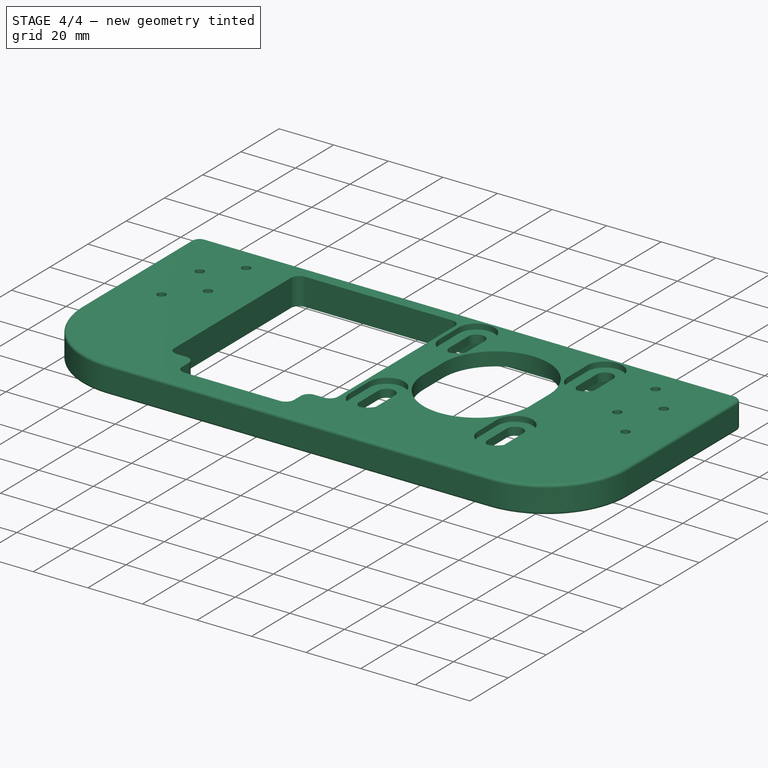
[diagram: stage 4 of 4 — iso view after this stage's code; geometry added in this stage tinted green]
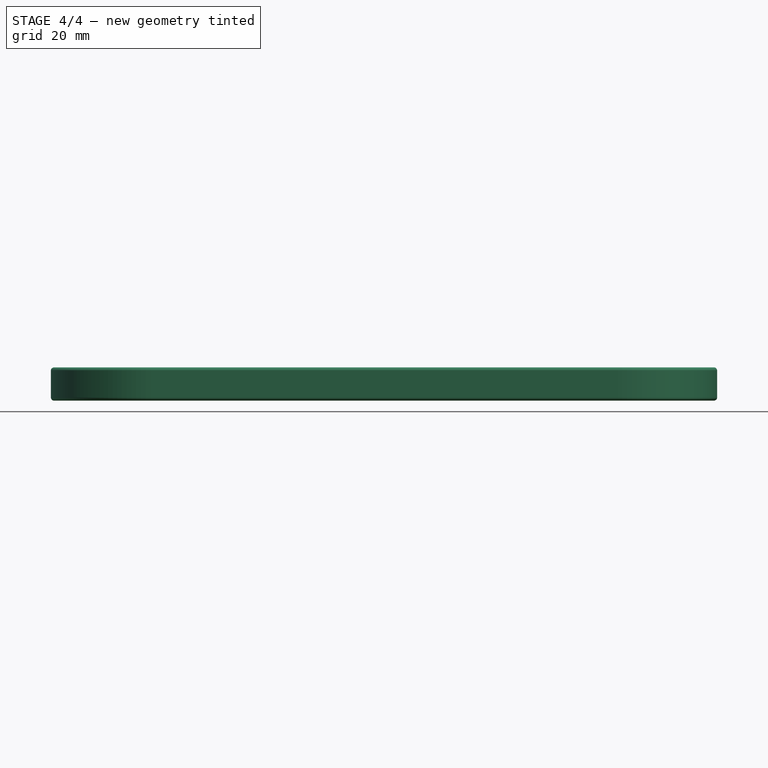
[diagram: stage 4 of 4 — front view after this stage's code; geometry added in this stage tinted green]
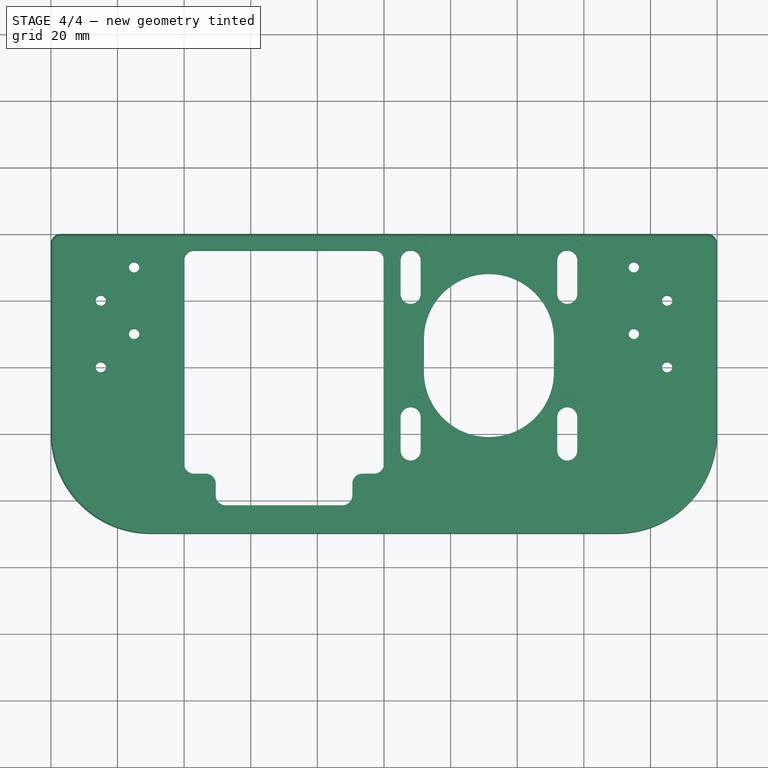
[diagram: stage 4 of 4 — top view after this stage's code; geometry added in this stage tinted green]
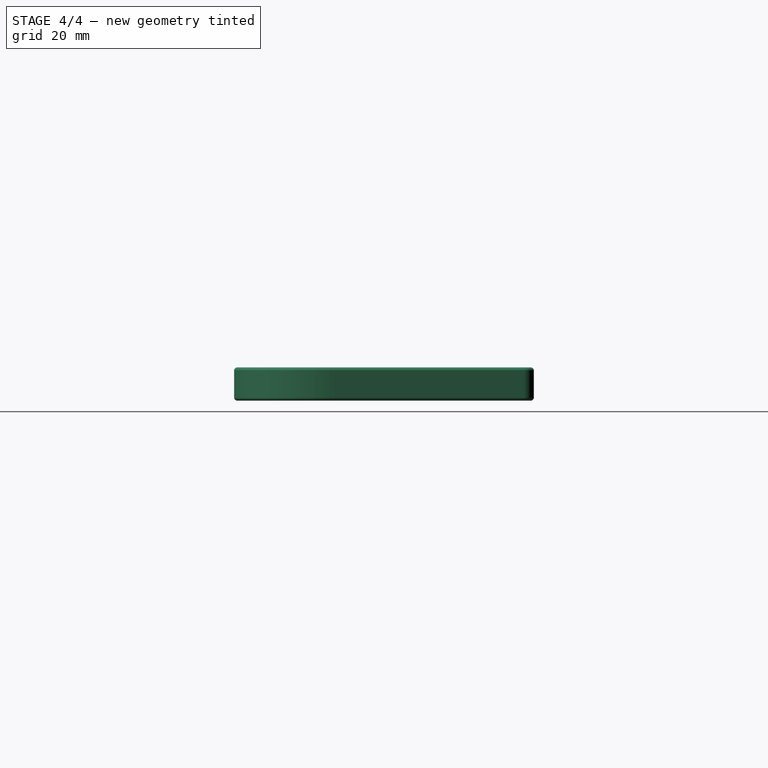
[diagram: stage 4 of 4 — right view after this stage's code; geometry added in this stage tinted green]
FEATURE [PartDesign::Fillet] Fillet003
  Base = -> Pocket002 [Edge8,Edge3,Edge5,Edge7,Edge1,Edge2,Edge4,Edge6]
  BaseFeature = -> Pocket002
  Radius = 1
  SupportTransform = false
FEATURE [PartDesign::Fillet] Fillet004
  Base = -> Fillet003 [Edge212,Edge219,Edge218,Edge217,Edge216,Edge213,Edge214,Edge215]
  BaseFeature = -> Fillet003
  Radius = 1
  SupportTransform = false
FEATURE [PartDesign::Body] Body
  Group = -> [Sketch,Pad,Sketch001,Pad001,Sketch002,Pocket,Sketch003,Pocket001,Fillet,Fillet001,Fillet002,Sketch004,Pocket002,Fillet003,Fillet004]
  Origin = -> Origin
  Tip = -> Fillet004
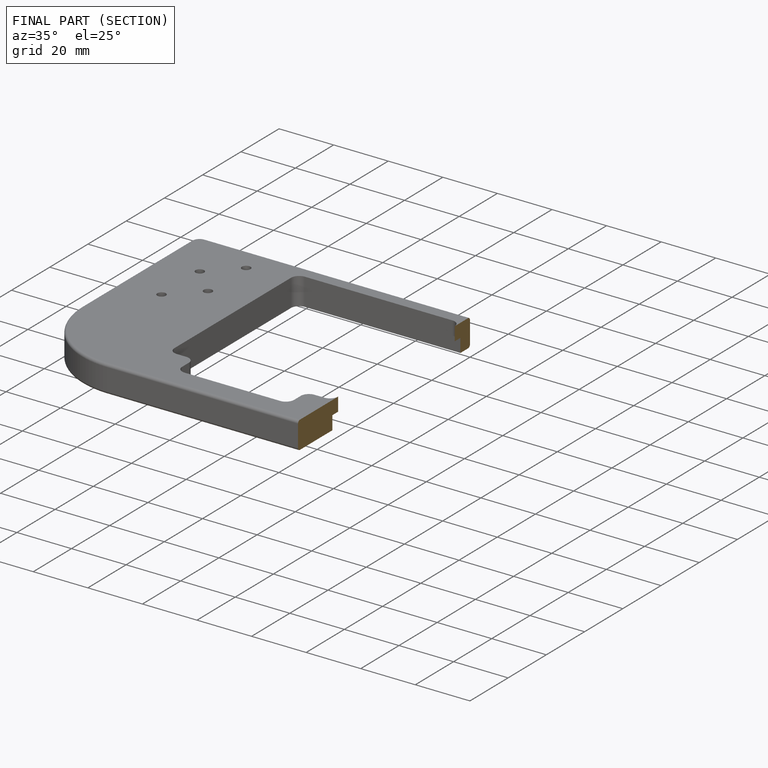
[diagram: finished part — half-section view (interior)]
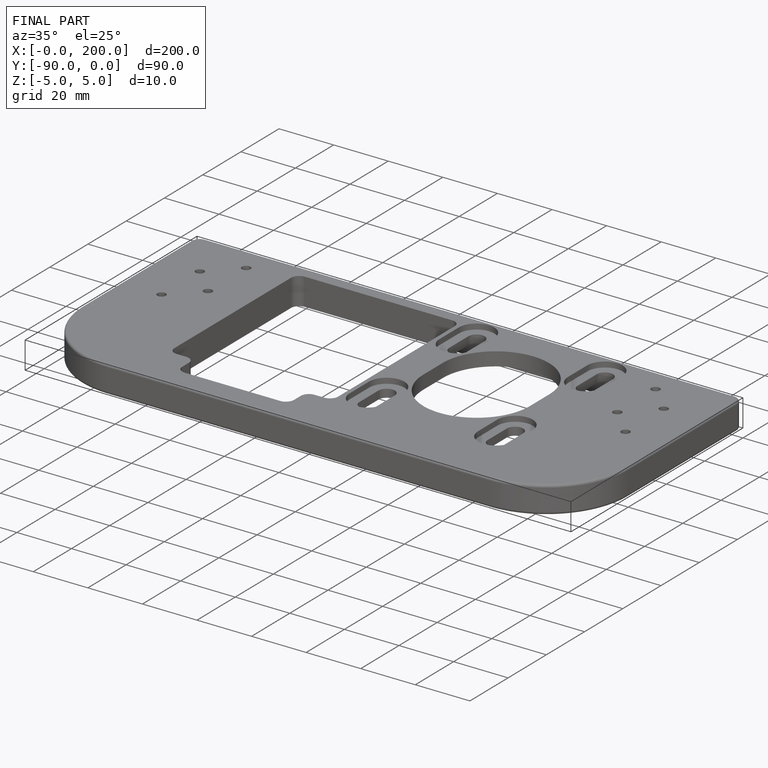
[diagram: finished part — iso view with bounding-box wireframe]
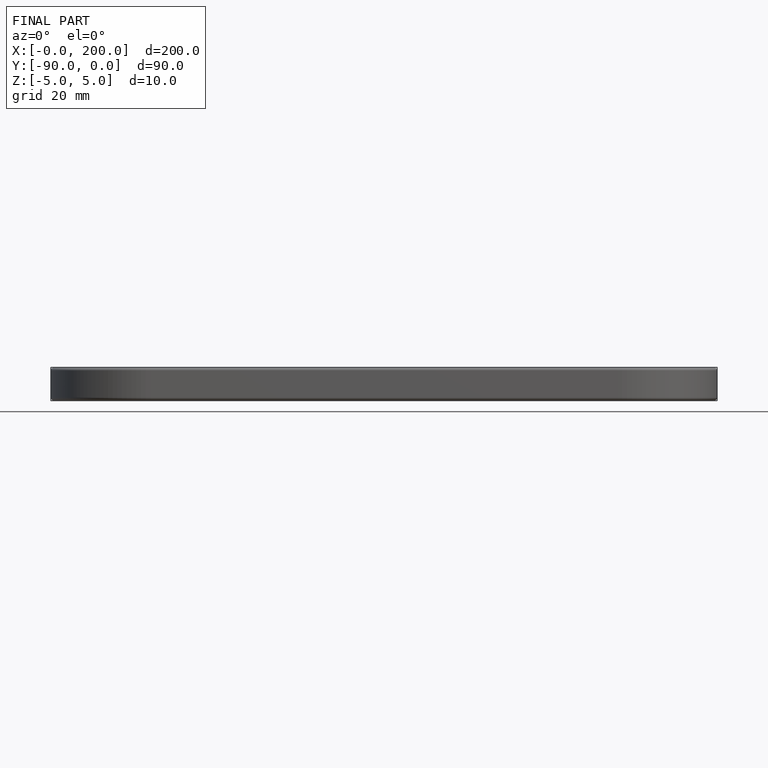
[diagram: finished part — front view with bounding-box wireframe]
